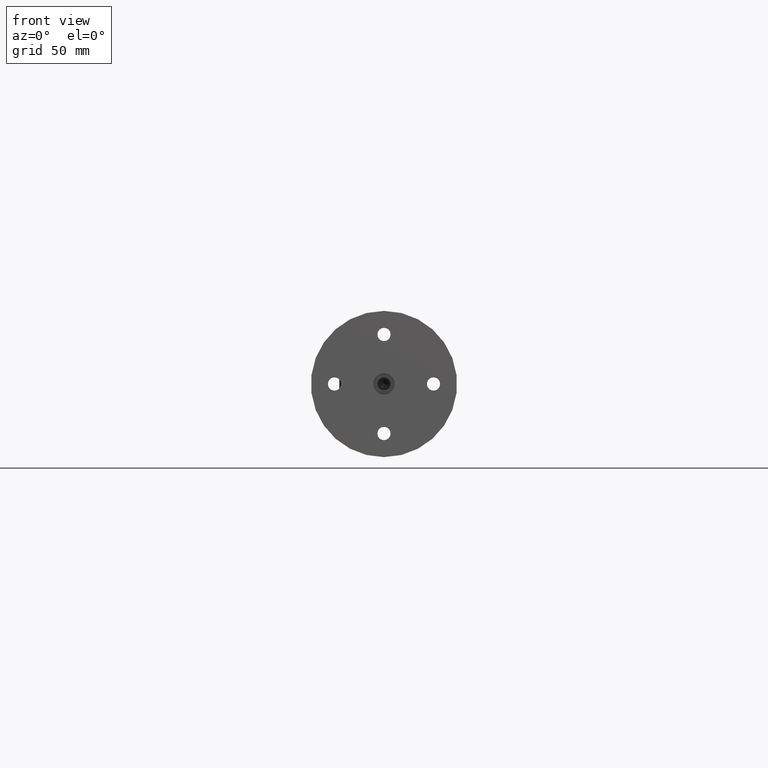
[diagram: clean part render]
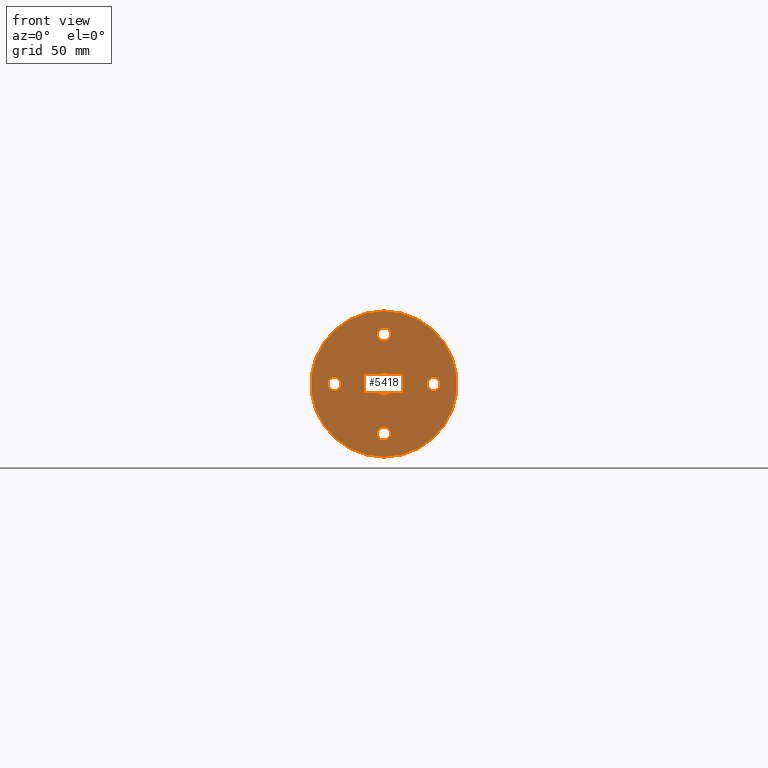
[diagram: same view with one face highlighted and labeled with its STEP entity id]
A machine part, front view. The second image highlights one B-rep face of the part: STEP entity #5418.
In plain terms, the highlighted planar face has unit normal (0, 1, 0).
Its self-contained STEP definition (entity closure, byte-faithful):
#38 = DIRECTION ( 'NONE',  ( -0.0000000000000000000, -1.000000000000000000, -0.0000000000000000000 ) ) ;
#215 = FACE_OUTER_BOUND ( 'NONE', #18288, .T. ) ;
#235 = DIRECTION ( 'NONE',  ( -0.0000000000000000000, 1.000000000000000000, -0.0000000000000000000 ) ) ;
#906 = AXIS2_PLACEMENT_3D ( 'NONE', #6122, #16870, #13870 ) ;
#991 = VERTEX_POINT ( 'NONE', #9659 ) ;
#1129 = CARTESIAN_POINT ( 'NONE',  ( 0.0000000000000000000, -3.070097820889742500, -37.50000000000000000 ) ) ;
#1371 = ORIENTED_EDGE ( 'NONE', *, *, #8364, .F. ) ;
#1412 = CARTESIAN_POINT ( 'NONE',  ( 0.0000000000000000000, -3.070097820889738900, 0.0000000000000000000 ) ) ;
#1590 = CARTESIAN_POINT ( 'NONE',  ( 6.735557395310437100E-016, -3.070097820889738900, 5.499999999999994700 ) ) ;
#1950 = CARTESIAN_POINT ( 'NONE',  ( 4.592425496802574400E-015, -3.070097820889742500, 37.50000000000000000 ) ) ;
#1980 = ORIENTED_EDGE ( 'NONE', *, *, #10384, .T. ) ;
#2025 = CARTESIAN_POINT ( 'NONE',  ( -25.39999999999999900, -3.070097820889742500, -3.378200000000263900 ) ) ;
#2709 = EDGE_LOOP ( 'NONE', ( #6801, #17411 ) ) ;
#2780 = CARTESIAN_POINT ( 'NONE',  ( 25.39999999999999900, -3.070097820889742500, 8.868362600661558700E-014 ) ) ;
#3173 = DIRECTION ( 'NONE',  ( -0.0000000000000000000, 1.000000000000000000, -0.0000000000000000000 ) ) ;
#3292 = VERTEX_POINT ( 'NONE', #13187 ) ;
#3296 = CARTESIAN_POINT ( 'NONE',  ( -25.39999999999999900, -3.070097820889742500, 3.378199999999731900 ) ) ;
#3380 = CIRCLE ( 'NONE', #9335, 5.499999999999994700 ) ;
#3505 = ORIENTED_EDGE ( 'NONE', *, *, #4811, .T. ) ;
#3969 = EDGE_CURVE ( 'NONE', #7236, #3292, #5712, .T. ) ;
#4191 = CARTESIAN_POINT ( 'NONE',  ( 1.555250069354419700E-015, -3.070097820889738900, 0.0000000000000000000 ) ) ;
#4382 = CARTESIAN_POINT ( 'NONE',  ( -25.39999999999999900, -3.070097820889742500, -2.660508780198467500E-013 ) ) ;
#4410 = DIRECTION ( 'NONE',  ( -0.0000000000000000000, -1.000000000000000000, -0.0000000000000000000 ) ) ;
#4461 = DIRECTION ( 'NONE',  ( 0.0000000000000000000, 0.0000000000000000000, -1.000000000000000000 ) ) ;
#4554 = DIRECTION ( 'NONE',  ( 0.0000000000000000000, 0.0000000000000000000, -1.000000000000000000 ) ) ;
#4656 = EDGE_CURVE ( 'NONE', #15313, #8458, #10463, .T. ) ;
#4787 = CARTESIAN_POINT ( 'NONE',  ( 25.39999999999999900, -3.070097820889742500, 3.378200000000086200 ) ) ;
#4811 = EDGE_CURVE ( 'NONE', #5013, #7032, #17135, .T. ) ;
#5013 = VERTEX_POINT ( 'NONE', #2025 ) ;
#5418 = ADVANCED_FACE ( 'NONE', ( #17117, #13061, #18568, #19263, #11398, #215 ), #14841, .F. ) ;
#5648 = CARTESIAN_POINT ( 'NONE',  ( 0.0000000000000000000, -3.070097820889742500, -25.39999999999999900 ) ) ;
#5712 = CIRCLE ( 'NONE', #19401, 3.378199999999997900 ) ;
#5859 = CARTESIAN_POINT ( 'NONE',  ( 0.0000000000000000000, -3.070097820889742500, 0.0000000000000000000 ) ) ;
#5922 = EDGE_LOOP ( 'NONE', ( #1371, #7250 ) ) ;
#5997 = ORIENTED_EDGE ( 'NONE', *, *, #13258, .T. ) ;
#6114 = CARTESIAN_POINT ( 'NONE',  ( 4.137101816879582600E-016, -3.070097820889742500, -28.77819999999999800 ) ) ;
#6122 = CARTESIAN_POINT ( 'NONE',  ( -1.773672520132311700E-013, -3.070097820889742500, 25.39999999999999900 ) ) ;
#6148 = VERTEX_POINT ( 'NONE', #1950 ) ;
#6263 = EDGE_CURVE ( 'NONE', #6148, #16492, #16836, .T. ) ;
#6286 = ORIENTED_EDGE ( 'NONE', *, *, #10387, .T. ) ;
#6466 = AXIS2_PLACEMENT_3D ( 'NONE', #16939, #235, #12410 ) ;
#6801 = ORIENTED_EDGE ( 'NONE', *, *, #4656, .T. ) ;
#6873 = DIRECTION ( 'NONE',  ( 0.0000000000000000000, 0.0000000000000000000, 1.000000000000000000 ) ) ;
#7032 = VERTEX_POINT ( 'NONE', #3296 ) ;
#7153 = VERTEX_POINT ( 'NONE', #1590 ) ;
#7236 = VERTEX_POINT ( 'NONE', #12312 ) ;
#7250 = ORIENTED_EDGE ( 'NONE', *, *, #10529, .F. ) ;
#7898 = DIRECTION ( 'NONE',  ( 0.0000000000000000000, 0.0000000000000000000, 1.000000000000000000 ) ) ;
#8193 = ORIENTED_EDGE ( 'NONE', *, *, #18283, .T. ) ;
#8364 = EDGE_CURVE ( 'NONE', #11573, #7153, #9415, .T. ) ;
#8458 = VERTEX_POINT ( 'NONE', #6114 ) ;
#8591 = DIRECTION ( 'NONE',  ( 0.0000000000000000000, 1.000000000000000000, 0.0000000000000000000 ) ) ;
#8678 = AXIS2_PLACEMENT_3D ( 'NONE', #4382, #16657, #16393 ) ;
#8915 = EDGE_LOOP ( 'NONE', ( #1980, #3505 ) ) ;
#9092 = CIRCLE ( 'NONE', #906, 3.378199999999997900 ) ;
#9121 = ORIENTED_EDGE ( 'NONE', *, *, #6263, .T. ) ;
#9335 = AXIS2_PLACEMENT_3D ( 'NONE', #14561, #17700, #17573 ) ;
#9415 = CIRCLE ( 'NONE', #15929, 5.499999999999994700 ) ;
#9432 = EDGE_LOOP ( 'NONE', ( #15874, #5997 ) ) ;
#9659 = CARTESIAN_POINT ( 'NONE',  ( 25.39999999999999900, -3.070097820889742500, -3.378199999999909500 ) ) ;
#10001 = DIRECTION ( 'NONE',  ( -0.0000000000000000000, 1.000000000000000000, -0.0000000000000000000 ) ) ;
#10384 = EDGE_CURVE ( 'NONE', #7032, #5013, #12442, .T. ) ;
#10387 = EDGE_CURVE ( 'NONE', #3292, #7236, #9092, .T. ) ;
#10463 = CIRCLE ( 'NONE', #12392, 3.378199999999997900 ) ;
#10529 = EDGE_CURVE ( 'NONE', #7153, #11573, #3380, .T. ) ;
#10539 = DIRECTION ( 'NONE',  ( -0.0000000000000000000, -1.000000000000000000, -0.0000000000000000000 ) ) ;
#10991 = AXIS2_PLACEMENT_3D ( 'NONE', #17754, #11614, #6873 ) ;
#11398 = FACE_BOUND ( 'NONE', #2709, .T. ) ;
#11573 = VERTEX_POINT ( 'NONE', #14204 ) ;
#11614 = DIRECTION ( 'NONE',  ( -0.0000000000000000000, 1.000000000000000000, -0.0000000000000000000 ) ) ;
#12013 = AXIS2_PLACEMENT_3D ( 'NONE', #4191, #8591, #16391 ) ;
#12145 = DIRECTION ( 'NONE',  ( 0.0000000000000000000, 0.0000000000000000000, -1.000000000000000000 ) ) ;
#12193 = DIRECTION ( 'NONE',  ( -0.0000000000000000000, 1.000000000000000000, -0.0000000000000000000 ) ) ;
#12302 = CIRCLE ( 'NONE', #15298, 3.378199999999997900 ) ;
#12312 = CARTESIAN_POINT ( 'NONE',  ( -1.773672520132311700E-013, -3.070097820889742500, 28.77819999999999800 ) ) ;
#12392 = AXIS2_PLACEMENT_3D ( 'NONE', #5648, #10001, #14649 ) ;
#12410 = DIRECTION ( 'NONE',  ( 0.0000000000000000000, 0.0000000000000000000, 1.000000000000000000 ) ) ;
#12442 = CIRCLE ( 'NONE', #16226, 3.378199999999997900 ) ;
#13061 = FACE_BOUND ( 'NONE', #8915, .T. ) ;
#13187 = CARTESIAN_POINT ( 'NONE',  ( -1.769535418315432100E-013, -3.070097820889742500, 22.02180000000000200 ) ) ;
#13258 = EDGE_CURVE ( 'NONE', #991, #16667, #12302, .T. ) ;
#13434 = DIRECTION ( 'NONE',  ( -0.0000000000000000000, 1.000000000000000000, -0.0000000000000000000 ) ) ;
#13531 = CIRCLE ( 'NONE', #6466, 3.378199999999997900 ) ;
#13765 = CARTESIAN_POINT ( 'NONE',  ( -1.773672520132311700E-013, -3.070097820889742500, 25.39999999999999900 ) ) ;
#13870 = DIRECTION ( 'NONE',  ( 0.0000000000000000000, 0.0000000000000000000, 1.000000000000000000 ) ) ;
#13948 = EDGE_CURVE ( 'NONE', #16667, #991, #13531, .T. ) ;
#14131 = ORIENTED_EDGE ( 'NONE', *, *, #3969, .T. ) ;
#14204 = CARTESIAN_POINT ( 'NONE',  ( 0.0000000000000000000, -3.070097820889738900, -5.499999999999994700 ) ) ;
#14561 = CARTESIAN_POINT ( 'NONE',  ( 0.0000000000000000000, -3.070097820889738900, 0.0000000000000000000 ) ) ;
#14649 = DIRECTION ( 'NONE',  ( 0.0000000000000000000, 0.0000000000000000000, 1.000000000000000000 ) ) ;
#14841 = PLANE ( 'NONE',  #12013 ) ;
#15003 = CIRCLE ( 'NONE', #16120, 37.50000000000000000 ) ;
#15272 = CARTESIAN_POINT ( 'NONE',  ( -25.39999999999999900, -3.070097820889742500, -2.660508780198467500E-013 ) ) ;
#15298 = AXIS2_PLACEMENT_3D ( 'NONE', #2780, #13434, #16571 ) ;
#15313 = VERTEX_POINT ( 'NONE', #19154 ) ;
#15353 = EDGE_CURVE ( 'NONE', #8458, #15313, #18257, .T. ) ;
#15874 = ORIENTED_EDGE ( 'NONE', *, *, #13948, .T. ) ;
#15929 = AXIS2_PLACEMENT_3D ( 'NONE', #1412, #10539, #4461 ) ;
#16120 = AXIS2_PLACEMENT_3D ( 'NONE', #16693, #38, #4554 ) ;
#16165 = AXIS2_PLACEMENT_3D ( 'NONE', #5859, #4410, #12145 ) ;
#16226 = AXIS2_PLACEMENT_3D ( 'NONE', #15272, #12193, #16739 ) ;
#16391 = DIRECTION ( 'NONE',  ( 0.0000000000000000000, -0.0000000000000000000, 1.000000000000000000 ) ) ;
#16393 = DIRECTION ( 'NONE',  ( 0.0000000000000000000, 0.0000000000000000000, 1.000000000000000000 ) ) ;
#16492 = VERTEX_POINT ( 'NONE', #1129 ) ;
#16571 = DIRECTION ( 'NONE',  ( 0.0000000000000000000, 0.0000000000000000000, 1.000000000000000000 ) ) ;
#16657 = DIRECTION ( 'NONE',  ( -0.0000000000000000000, 1.000000000000000000, -0.0000000000000000000 ) ) ;
#16667 = VERTEX_POINT ( 'NONE', #4787 ) ;
#16693 = CARTESIAN_POINT ( 'NONE',  ( 0.0000000000000000000, -3.070097820889742500, 0.0000000000000000000 ) ) ;
#16739 = DIRECTION ( 'NONE',  ( 0.0000000000000000000, 0.0000000000000000000, 1.000000000000000000 ) ) ;
#16836 = CIRCLE ( 'NONE', #16165, 37.50000000000000000 ) ;
#16870 = DIRECTION ( 'NONE',  ( -0.0000000000000000000, 1.000000000000000000, -0.0000000000000000000 ) ) ;
#16939 = CARTESIAN_POINT ( 'NONE',  ( 25.39999999999999900, -3.070097820889742500, 8.868362600661558700E-014 ) ) ;
#17117 = FACE_BOUND ( 'NONE', #5922, .T. ) ;
#17135 = CIRCLE ( 'NONE', #8678, 3.378199999999997900 ) ;
#17326 = EDGE_LOOP ( 'NONE', ( #14131, #6286 ) ) ;
#17411 = ORIENTED_EDGE ( 'NONE', *, *, #15353, .T. ) ;
#17573 = DIRECTION ( 'NONE',  ( 0.0000000000000000000, 0.0000000000000000000, -1.000000000000000000 ) ) ;
#17700 = DIRECTION ( 'NONE',  ( -0.0000000000000000000, -1.000000000000000000, -0.0000000000000000000 ) ) ;
#17754 = CARTESIAN_POINT ( 'NONE',  ( 0.0000000000000000000, -3.070097820889742500, -25.39999999999999900 ) ) ;
#18257 = CIRCLE ( 'NONE', #10991, 3.378199999999997900 ) ;
#18283 = EDGE_CURVE ( 'NONE', #16492, #6148, #15003, .T. ) ;
#18288 = EDGE_LOOP ( 'NONE', ( #8193, #9121 ) ) ;
#18568 = FACE_BOUND ( 'NONE', #17326, .T. ) ;
#19154 = CARTESIAN_POINT ( 'NONE',  ( 0.0000000000000000000, -3.070097820889742500, -22.02180000000000200 ) ) ;
#19263 = FACE_BOUND ( 'NONE', #9432, .T. ) ;
#19401 = AXIS2_PLACEMENT_3D ( 'NONE', #13765, #3173, #7898 ) ;